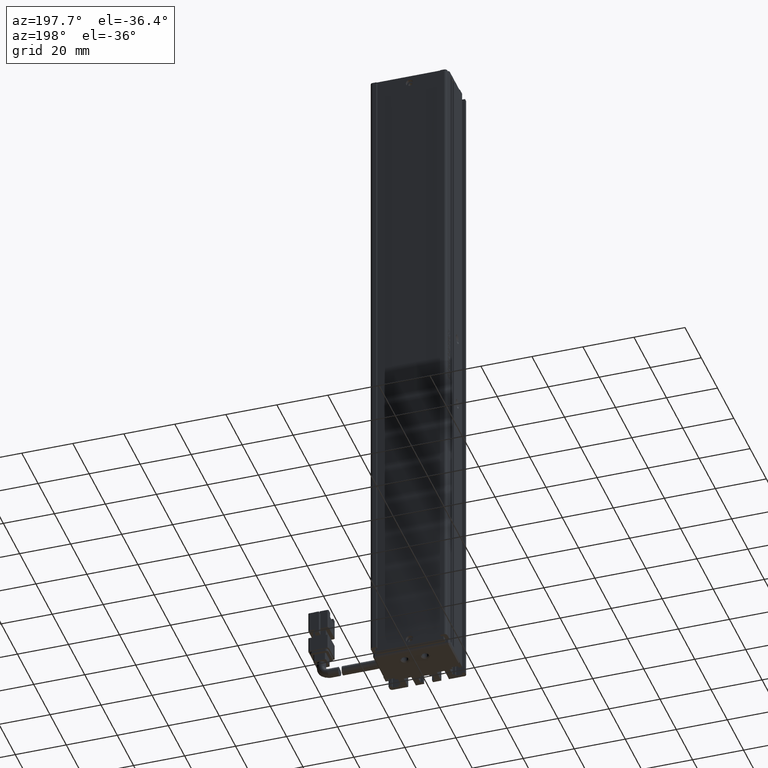
[diagram: clean part render]
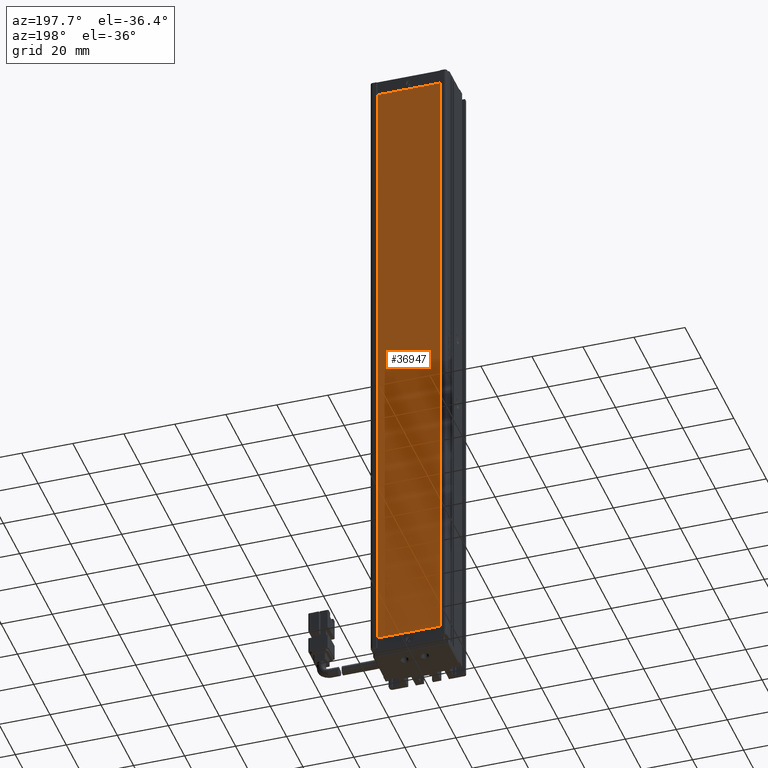
[diagram: same view with one face highlighted and labeled with its STEP entity id]
A machine part, auxiliary view. The second image highlights one B-rep face of the part: STEP entity #36947.
In plain terms, the highlighted planar face has unit normal (0, 1, 0).
Its self-contained STEP definition (entity closure, byte-faithful):
#494 = VERTEX_POINT ( 'NONE', #18265 ) ;
#1342 = CARTESIAN_POINT ( 'NONE',  ( 28.52537974683541600, 34.29594479660387000, -240.8500000000000200 ) ) ;
#1753 = DIRECTION ( 'NONE',  ( 0.0000000000000000000, 0.0000000000000000000, -1.000000000000000000 ) ) ;
#1939 = CARTESIAN_POINT ( 'NONE',  ( 53.32537974683541600, 34.29594479660387000, 11.14999999999999300 ) ) ;
#3438 = VERTEX_POINT ( 'NONE', #17822 ) ;
#3770 = ORIENTED_EDGE ( 'NONE', *, *, #43238, .T. ) ;
#5663 = DIRECTION ( 'NONE',  ( 0.0000000000000000000, 0.0000000000000000000, 1.000000000000000000 ) ) ;
#7210 = LINE ( 'NONE', #38314, #51403 ) ;
#8108 = CARTESIAN_POINT ( 'NONE',  ( 28.52537974683541600, 34.29594479660387000, -240.8500000000000200 ) ) ;
#8995 = DIRECTION ( 'NONE',  ( 0.0000000000000000000, -0.0000000000000000000, 1.000000000000000000 ) ) ;
#10654 = DIRECTION ( 'NONE',  ( -1.000000000000000000, 0.0000000000000000000, 0.0000000000000000000 ) ) ;
#11481 = LINE ( 'NONE', #27947, #34329 ) ;
#11818 = EDGE_CURVE ( 'NONE', #3438, #494, #51833, .T. ) ;
#16108 = ORIENTED_EDGE ( 'NONE', *, *, #11818, .T. ) ;
#17534 = CARTESIAN_POINT ( 'NONE',  ( 0.0000000000000000000, 34.29594479660387000, 0.0000000000000000000 ) ) ;
#17822 = CARTESIAN_POINT ( 'NONE',  ( 53.32537974683541600, 34.29594479660387000, 11.14999999999999300 ) ) ;
#17907 = ORIENTED_EDGE ( 'NONE', *, *, #25519, .T. ) ;
#18265 = CARTESIAN_POINT ( 'NONE',  ( 53.32537974683541600, 34.29594479660387000, -240.8500000000000200 ) ) ;
#21420 = VECTOR ( 'NONE', #5663, 1000.000000000000000 ) ;
#22344 = VERTEX_POINT ( 'NONE', #31926 ) ;
#23559 = EDGE_LOOP ( 'NONE', ( #16108, #49682, #17907, #3770 ) ) ;
#25519 = EDGE_CURVE ( 'NONE', #41274, #22344, #55432, .T. ) ;
#26069 = PLANE ( 'NONE',  #54449 ) ;
#27947 = CARTESIAN_POINT ( 'NONE',  ( 53.32537974683541600, 34.29594479660387000, -240.8500000000000200 ) ) ;
#31087 = EDGE_CURVE ( 'NONE', #494, #41274, #11481, .T. ) ;
#31926 = CARTESIAN_POINT ( 'NONE',  ( 28.52537974683541600, 34.29594479660387000, 11.14999999999999300 ) ) ;
#34329 = VECTOR ( 'NONE', #10654, 1000.000000000000000 ) ;
#34697 = DIRECTION ( 'NONE',  ( 0.0000000000000000000, 1.000000000000000000, 0.0000000000000000000 ) ) ;
#36947 = ADVANCED_FACE ( 'NONE', ( #55160 ), #26069, .T. ) ;
#38314 = CARTESIAN_POINT ( 'NONE',  ( 28.52537974683541600, 34.29594479660387000, 11.14999999999999300 ) ) ;
#41274 = VERTEX_POINT ( 'NONE', #8108 ) ;
#42633 = DIRECTION ( 'NONE',  ( 1.000000000000000000, 0.0000000000000000000, 0.0000000000000000000 ) ) ;
#43238 = EDGE_CURVE ( 'NONE', #22344, #3438, #7210, .T. ) ;
#49682 = ORIENTED_EDGE ( 'NONE', *, *, #31087, .T. ) ;
#50532 = VECTOR ( 'NONE', #1753, 1000.000000000000000 ) ;
#51403 = VECTOR ( 'NONE', #42633, 1000.000000000000000 ) ;
#51833 = LINE ( 'NONE', #1939, #50532 ) ;
#54449 = AXIS2_PLACEMENT_3D ( 'NONE', #17534, #34697, #8995 ) ;
#55160 = FACE_OUTER_BOUND ( 'NONE', #23559, .T. ) ;
#55432 = LINE ( 'NONE', #1342, #21420 ) ;